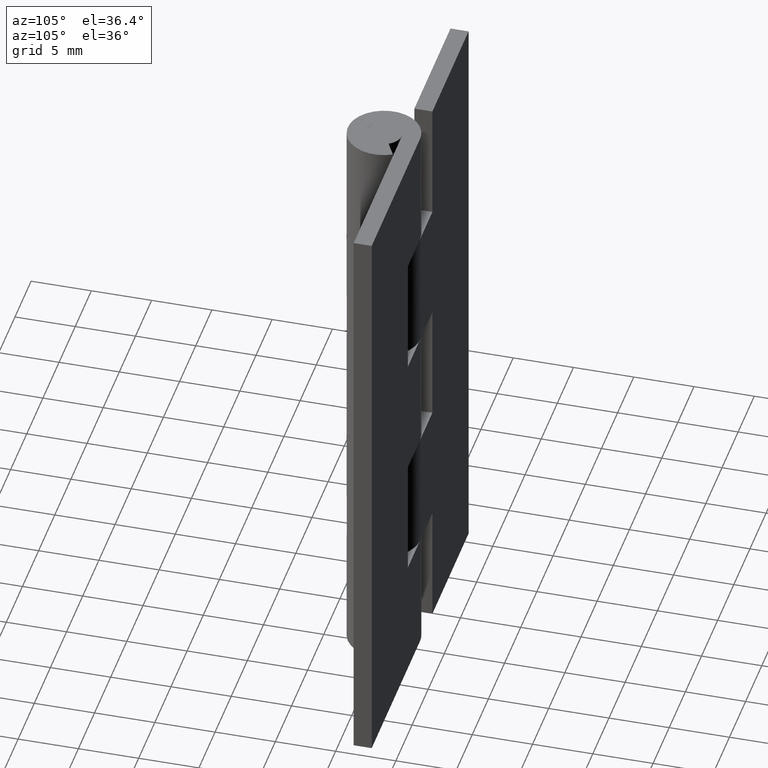
[diagram: clean part render]
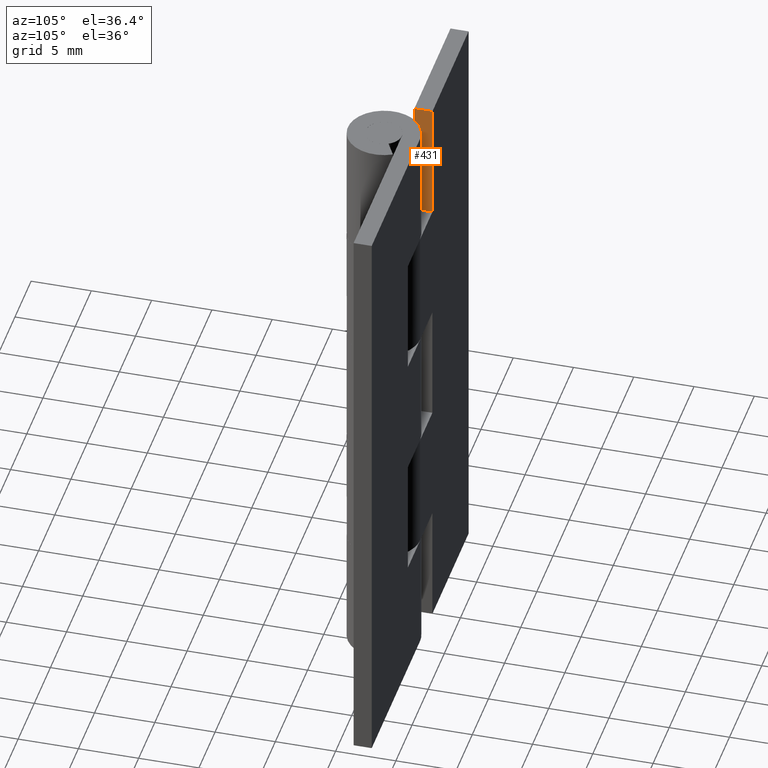
[diagram: same view with one face highlighted and labeled with its STEP entity id]
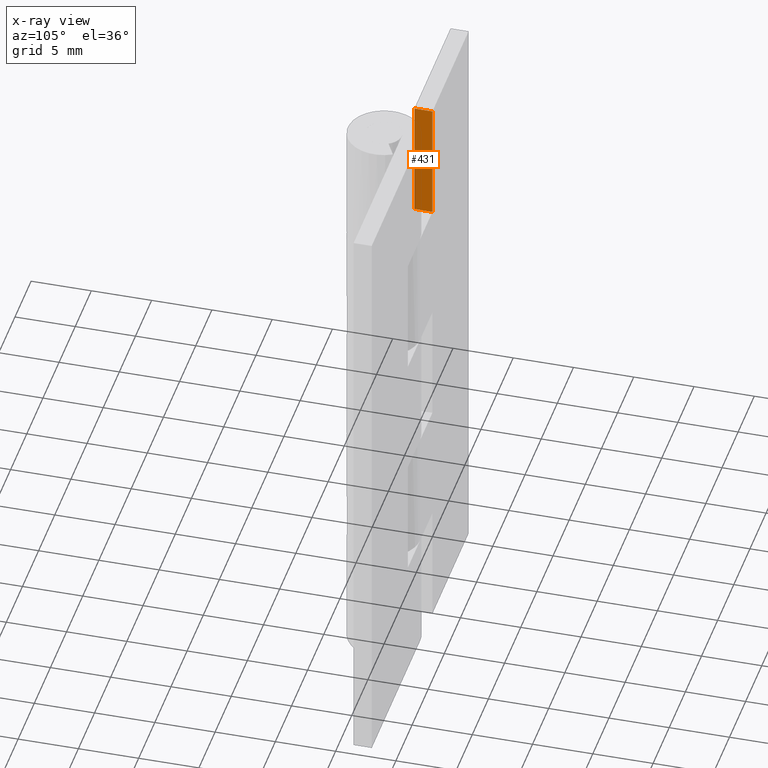
[diagram: x-ray of the same camera — body ghosted, the highlighted face saturated]
A machine part, auxiliary view. The second image highlights one B-rep face of the part: STEP entity #431.
The next image is the same camera in x-ray: the body ghosted, the highlighted face saturated — about 4% of this face is hidden behind the body in this view.
In plain terms, the highlighted face is a freeform B-spline surface patch.
Its self-contained STEP definition (entity closure, byte-faithful):
#331=CARTESIAN_POINT('',(-3.800003000000000,3.0,40.0));
#332=VERTEX_POINT('',#331);
#340=CARTESIAN_POINT('',(-3.800003000000000,1.499999999999946,40.0));
#341=VERTEX_POINT('',#340);
#342=CARTESIAN_POINT('',(-3.800003000000000,1.499999999999946,40.0));
#343=CARTESIAN_POINT('',(-3.800003000000000,3.0,40.0));
#344=QUASI_UNIFORM_CURVE('',1,(#342,#343),.UNSPECIFIED.,.F.,.U.);
#345=EDGE_CURVE('',#341,#332,#344,.T.);
#404=CARTESIAN_POINT('',(-3.800003000000000,1.425075002907234,50.499499980618062));
#405=CARTESIAN_POINT('',(-3.800003000000000,1.425075002907234,39.500499751161037));
#406=CARTESIAN_POINT('',(-3.800003000000000,3.074925037325847,50.499499980618062));
#407=CARTESIAN_POINT('',(-3.800003000000000,3.074925037325847,39.500499751161037));
#408=B_SPLINE_SURFACE_WITH_KNOTS('',1,1,((#404,#406),(#405,#407)),.UNSPECIFIED.,.F.,.F.,.U.,(2,2),(2,2),(0.0,10.999000229457030),(0.041708334948495,0.958291687403247),.UNSPECIFIED.);
#409=ORIENTED_EDGE('',*,*,#345,.T.);
#410=CARTESIAN_POINT('',(-3.800003000000000,3.0,50.0));
#411=VERTEX_POINT('',#410);
#412=CARTESIAN_POINT('',(-3.800003000000000,3.0,50.0));
#413=CARTESIAN_POINT('',(-3.800003000000000,3.0,40.0));
#414=QUASI_UNIFORM_CURVE('',1,(#412,#413),.UNSPECIFIED.,.F.,.U.);
#415=EDGE_CURVE('',#411,#332,#414,.T.);
#416=ORIENTED_EDGE('',*,*,#415,.F.);
#417=CARTESIAN_POINT('',(-3.800003000000000,1.499999999999946,50.0));
#418=VERTEX_POINT('',#417);
#419=CARTESIAN_POINT('',(-3.800003000000000,1.499999999999946,50.0));
#420=CARTESIAN_POINT('',(-3.800003000000000,3.0,50.0));
#421=QUASI_UNIFORM_CURVE('',1,(#419,#420),.UNSPECIFIED.,.F.,.U.);
#422=EDGE_CURVE('',#418,#411,#421,.T.);
#423=ORIENTED_EDGE('',*,*,#422,.F.);
#424=CARTESIAN_POINT('',(-3.800003000000000,1.499999999999946,40.0));
#425=CARTESIAN_POINT('',(-3.800003000000000,1.499999999999946,50.0));
#426=QUASI_UNIFORM_CURVE('',1,(#424,#425),.UNSPECIFIED.,.F.,.U.);
#427=EDGE_CURVE('',#341,#418,#426,.T.);
#428=ORIENTED_EDGE('',*,*,#427,.F.);
#429=EDGE_LOOP('',(#409,#416,#423,#428));
#430=FACE_OUTER_BOUND('',#429,.T.);
#431=ADVANCED_FACE('',(#430),#408,.T.);